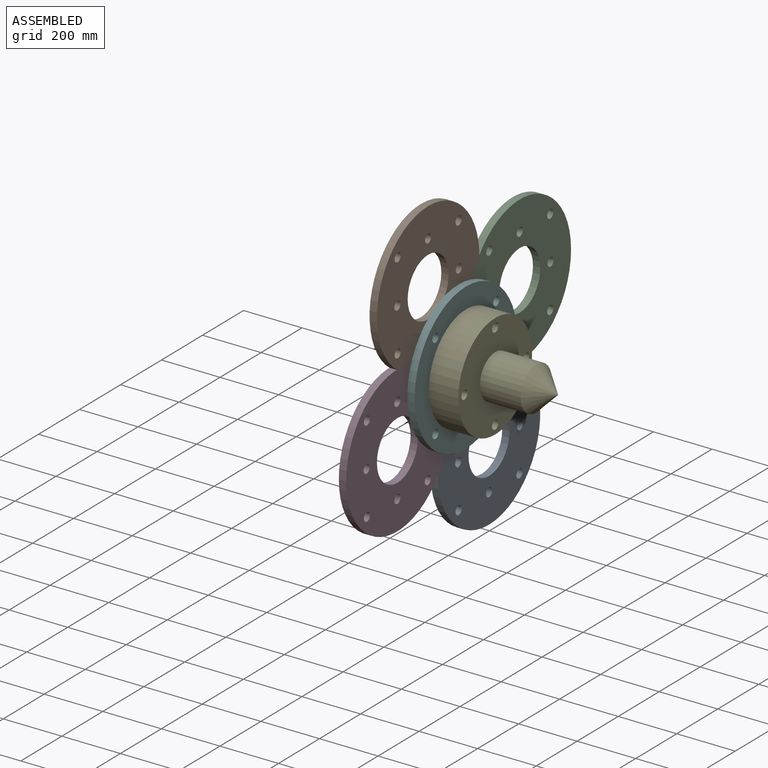
[diagram: assembled view]
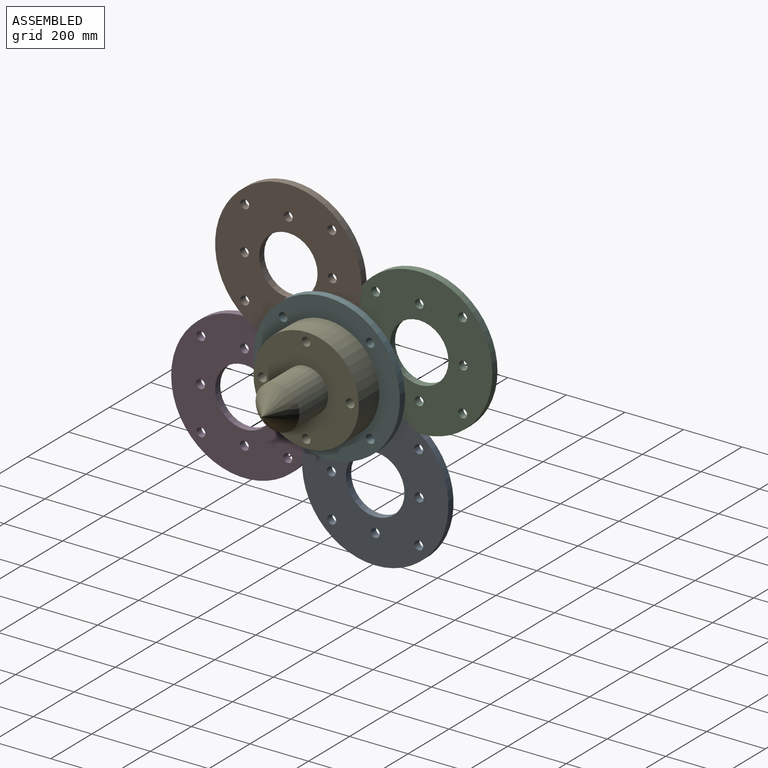
[diagram: assembled view, second angle]
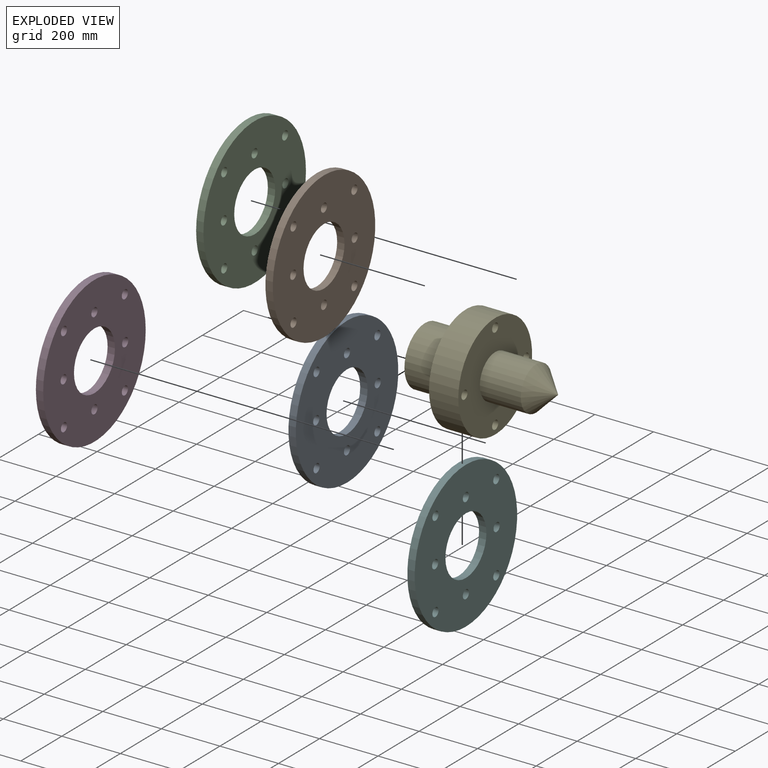
[diagram: exploded view]
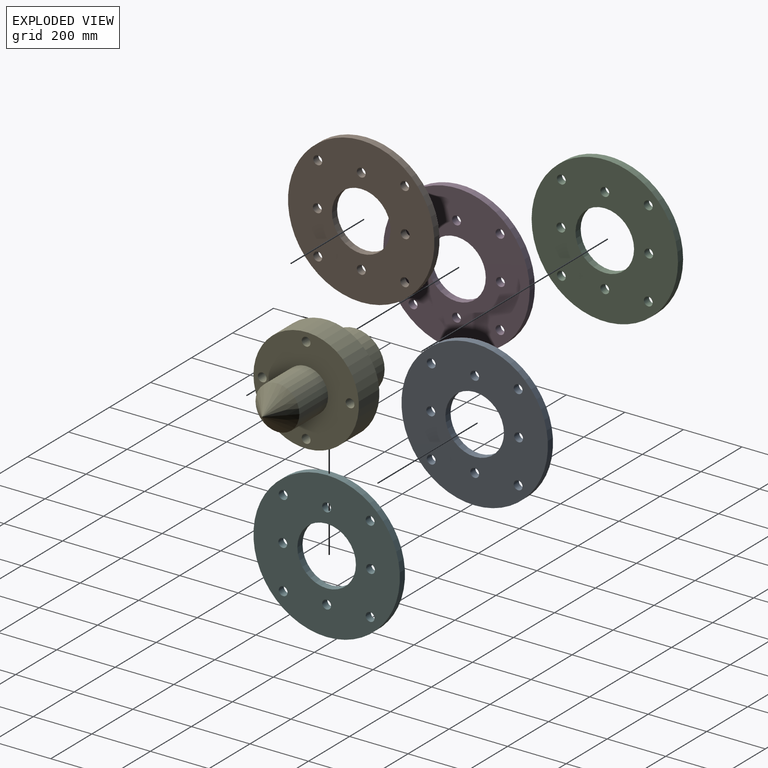
[diagram: exploded view, second angle]
ASSEMBLY  parts=6 mates=4
PART A: 12 faces, bbox 500x25x500 mm
  f0: plane 500x500mm, normal (0,1,0), area 159278.7mm2, adj f2,f3,f4,f5,f6,f7,f8,f9
  f1: plane 500x500mm, normal (0,-1,0), area 159278.7mm2, adj f2,f3,f4,f5,f6,f7,f8,f9
  f2: cylinder r=100mm len=200mm, axis (0,-1,0), area 15708mm2, adj f0,f1
  f3: cylinder r=15mm len=30mm, axis (0,-1,0), area 2356.2mm2, adj f0,f1
  f4: cylinder r=15mm len=30mm, axis (0,-1,0), area 2356.2mm2, adj f0,f1
  f5: cylinder r=15mm len=30mm, axis (0,-1,0), area 2356.2mm2, adj f0,f1
  f6: cylinder r=15mm len=30mm, axis (0,-1,0), area 2356.2mm2, adj f0,f1
  f7: cylinder r=250mm len=500mm, axis (0,-1,0), area 39269.9mm2, adj f0,f1
  f8: cylinder r=15mm len=30mm, axis (0,-1,0), area 2356.2mm2, adj f0,f1
  f9: cylinder r=15mm len=30mm, axis (0,-1,0), area 2356.2mm2, adj f0,f1
  f10: cylinder r=15mm len=30mm, axis (0,-1,0), area 2356.2mm2, adj f0,f1
  f11: cylinder r=15mm len=30mm, axis (0,-1,0), area 2356.2mm2, adj f0,f1
PART B: same geometry as A
PART C: same geometry as A
PART D: same geometry as A
PART E: 11 faces, bbox 455x360x360 mm
  f0: plane 200x200mm, normal (-1,0,0), area 31415.9mm2, adj f6
  f1: cone r=75mm half-angle=45deg, axis (-1,0,0), area 24991.2mm2, adj f2
  f2: cylinder r=75mm len=150mm, axis (-1,0,0), area 65973.4mm2, adj f1,f3
  f3: plane 360x360mm, normal (1,0,0), area 81288.7mm2, adj f2,f4,f7,f8,f9,f10
  f4: cylinder r=180mm len=360mm, axis (-1,0,0), area 113097.3mm2, adj f3,f5
  f5: plane 360x360mm, normal (-1,0,0), area 67544.2mm2, adj f4,f6,f7,f8,f9,f10
  f6: cylinder r=100mm len=200mm, axis (-1,0,0), area 87964.6mm2, adj f0,f5
  f7: cylinder r=15mm len=100mm, axis (-1,0,0), area 9424.8mm2, adj f3,f5
  f8: cylinder r=15mm len=100mm, axis (-1,0,0), area 9424.8mm2, adj f3,f5
  f9: cylinder r=15mm len=100mm, axis (-1,0,0), area 9424.8mm2, adj f3,f5
  f10: cylinder r=15mm len=100mm, axis (-1,0,0), area 9424.8mm2, adj f3,f5
PART F: same geometry as A
PLACE A rot(axis=(0,0,1),90deg) t=(115,148.49,-298.49)mm
PLACE B rot(axis=(0.71,-0.71,0),180deg) t=(115,-148.49,298.49)mm
PLACE C rot(axis=(0.58,-0.58,0.58),120deg) t=(115,298.49,148.49)mm
PLACE D rot(axis=(-0.58,0.58,0.58),120deg) t=(115,-298.49,-148.49)mm
PLACE E at identity fixed
PLACE F rot(axis=(0,0,1),90deg) t=(140,0,0)mm
MATE revolute F.f6 <-> C.f9  axis (-1,0,0) through (115,150,0)mm
MATE slider F.f8 <-> C.f3  axis (1,0,0) through (115,148.49,148.49)mm
MATE fastened F.f3 <-> E.f10  axis (1,0,0) through (140,0,150)mm
MATE slider E.f2 <-> F.f2  axis (-1,0,0) through (0,0,0)mm
